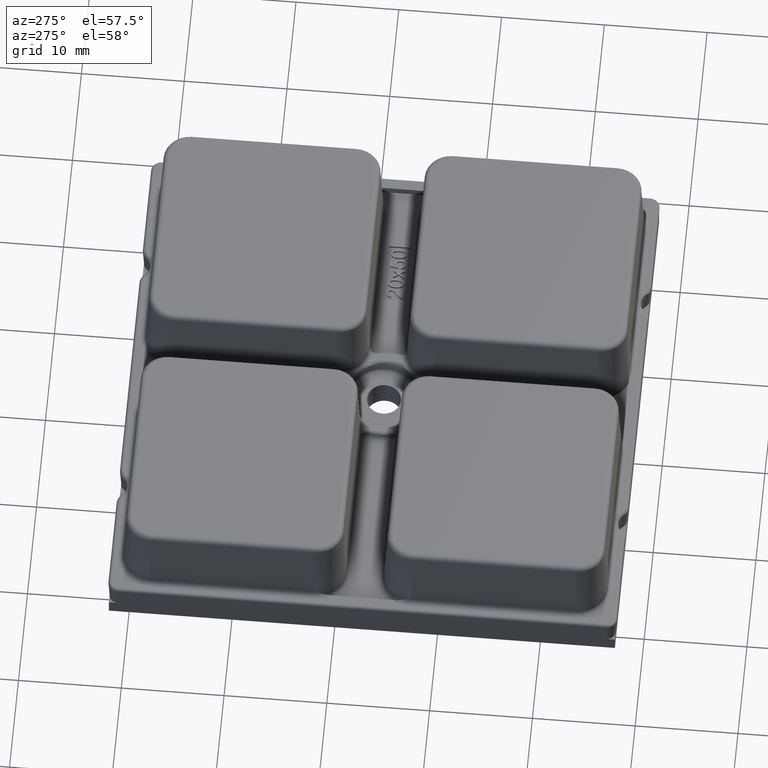
[diagram: clean part render]
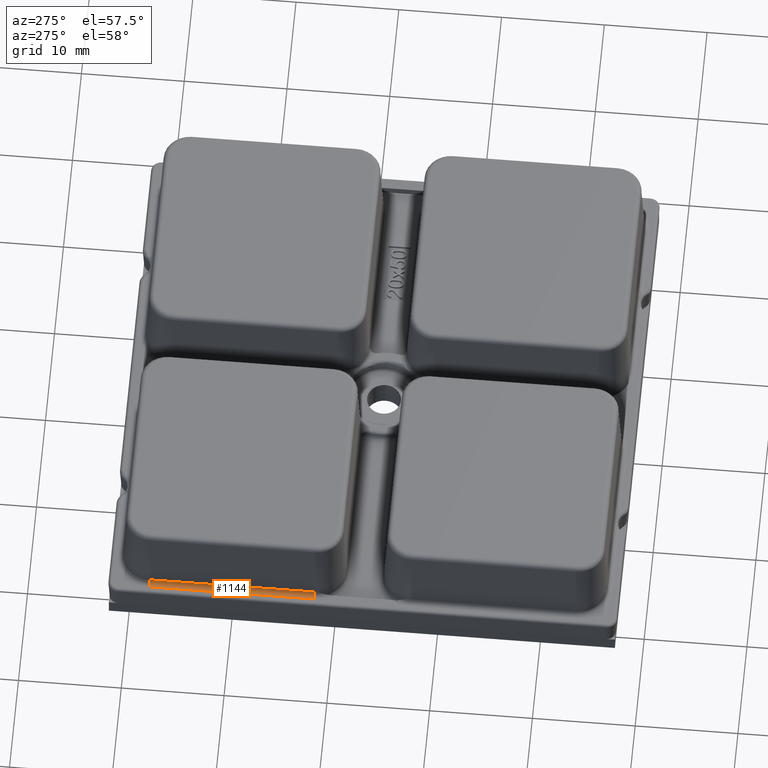
[diagram: same view with one face highlighted and labeled with its STEP entity id]
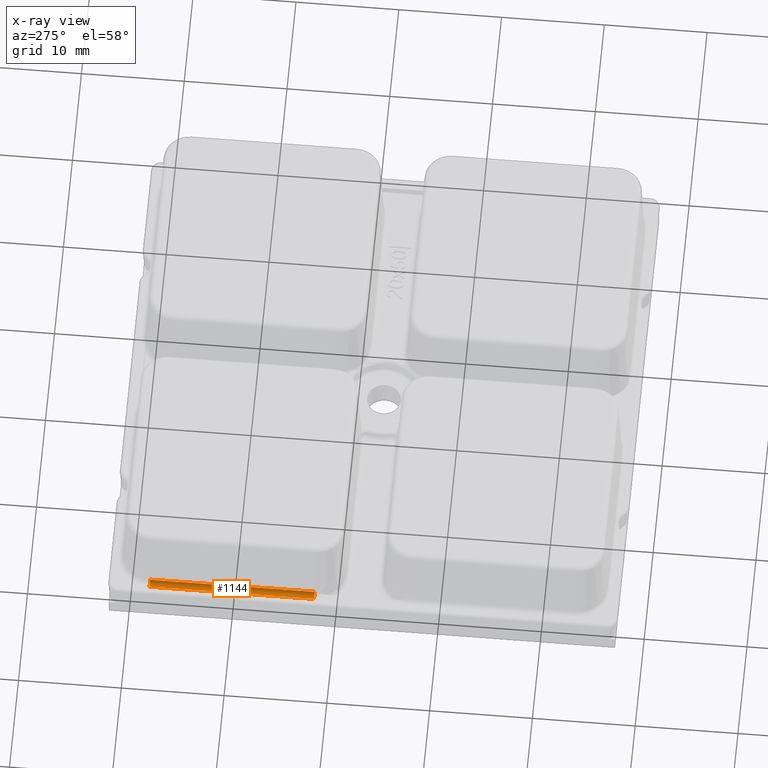
[diagram: x-ray of the same camera — body ghosted, the highlighted face saturated]
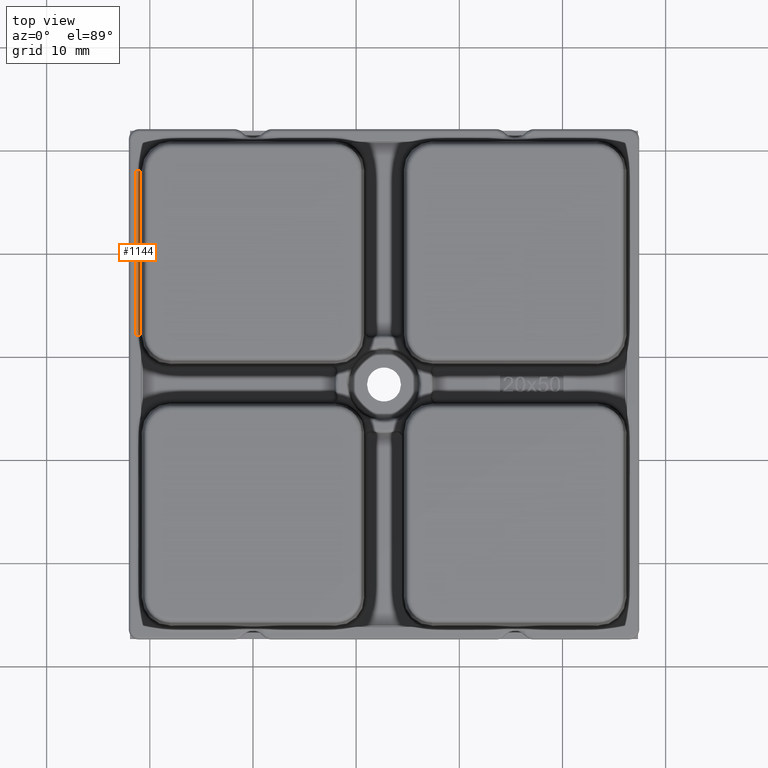
[diagram: same view with one face highlighted and labeled with its STEP entity id]
A machine part, auxiliary view. The second image highlights one B-rep face of the part: STEP entity #1144.
The next image is the same camera in x-ray: the body ghosted, the highlighted face saturated — about 0% of this face is hidden behind the body in this view.
A second angle (top view) of the same face is appended — the face is thin or edge-on in the first view.
In plain terms, the highlighted cylindrical surface (edge-blend (fillet) strip) has radius 0.5 mm, axis along (0, 1, 0).
Its self-contained STEP definition (entity closure, byte-faithful):
#252=CYLINDRICAL_SURFACE('',#8447,0.5);
#1144=ADVANCED_FACE('',(#1748),#252,.F.);
#1748=FACE_OUTER_BOUND('',#2238,.T.);
#2238=EDGE_LOOP('',(#4614,#4615,#4616,#4617));
#2812=CIRCLE('',#8444,0.5);
#2813=CIRCLE('',#8446,0.5);
#4614=ORIENTED_EDGE('',*,*,#6674,.T.);
#4615=ORIENTED_EDGE('',*,*,#6367,.F.);
#4616=ORIENTED_EDGE('',*,*,#6675,.F.);
#4617=ORIENTED_EDGE('',*,*,#5980,.F.);
#5281=VERTEX_POINT('',#11540);
#5296=VERTEX_POINT('',#11584);
#5535=VERTEX_POINT('',#13010);
#5537=VERTEX_POINT('',#13016);
#5980=EDGE_CURVE('',#5296,#5281,#6949,.T.);
#6367=EDGE_CURVE('',#5535,#5537,#7073,.T.);
#6674=EDGE_CURVE('',#5296,#5537,#2812,.T.);
#6675=EDGE_CURVE('',#5281,#5535,#2813,.T.);
#6949=LINE('',#11585,#7363);
#7073=LINE('',#13015,#7487);
#7363=VECTOR('',#8914,1.);
#7487=VECTOR('',#9672,1.);
#8444=AXIS2_PLACEMENT_3D('',#14495,#10355,#10356);
#8446=AXIS2_PLACEMENT_3D('',#14497,#10359,#10360);
#8447=AXIS2_PLACEMENT_3D('',#14498,#10361,#10362);
#8914=DIRECTION('',(0.,1.,0.));
#9672=DIRECTION('',(0.,-1.,0.));
#10355=DIRECTION('',(-6.94841646718625E-15,-1.,0.));
#10356=DIRECTION('',(1.,-6.93889390390723E-15,0.));
#10359=DIRECTION('',(6.94841646718625E-15,-1.,0.));
#10360=DIRECTION('',(1.,6.93889390390723E-15,0.));
#10361=DIRECTION('',(0.,1.,0.));
#10362=DIRECTION('',(0.,0.,-1.));
#11540=CARTESIAN_POINT('',(-11.3884977529329,7.99999999999998,1.811));
#11584=CARTESIAN_POINT('',(-11.3884977529329,-7.99999999999998,1.811));
#11585=CARTESIAN_POINT('',(-11.3884977529329,7.99999999999998,1.811));
#13010=CARTESIAN_POINT('',(-10.8891829855556,7.99999999999998,2.28483202187853));
#13015=CARTESIAN_POINT('',(-10.8891829855556,-7.99999999999998,2.28483202187853));
#13016=CARTESIAN_POINT('',(-10.8891829855556,-7.99999999999998,2.28483202187853));
#14495=CARTESIAN_POINT('',(-11.3884977529329,-7.99999999999998,2.311));
#14497=CARTESIAN_POINT('',(-11.3884977529329,7.99999999999998,2.311));
#14498=CARTESIAN_POINT('',(-11.3884977529329,-3.41156814067374E-19,2.311));